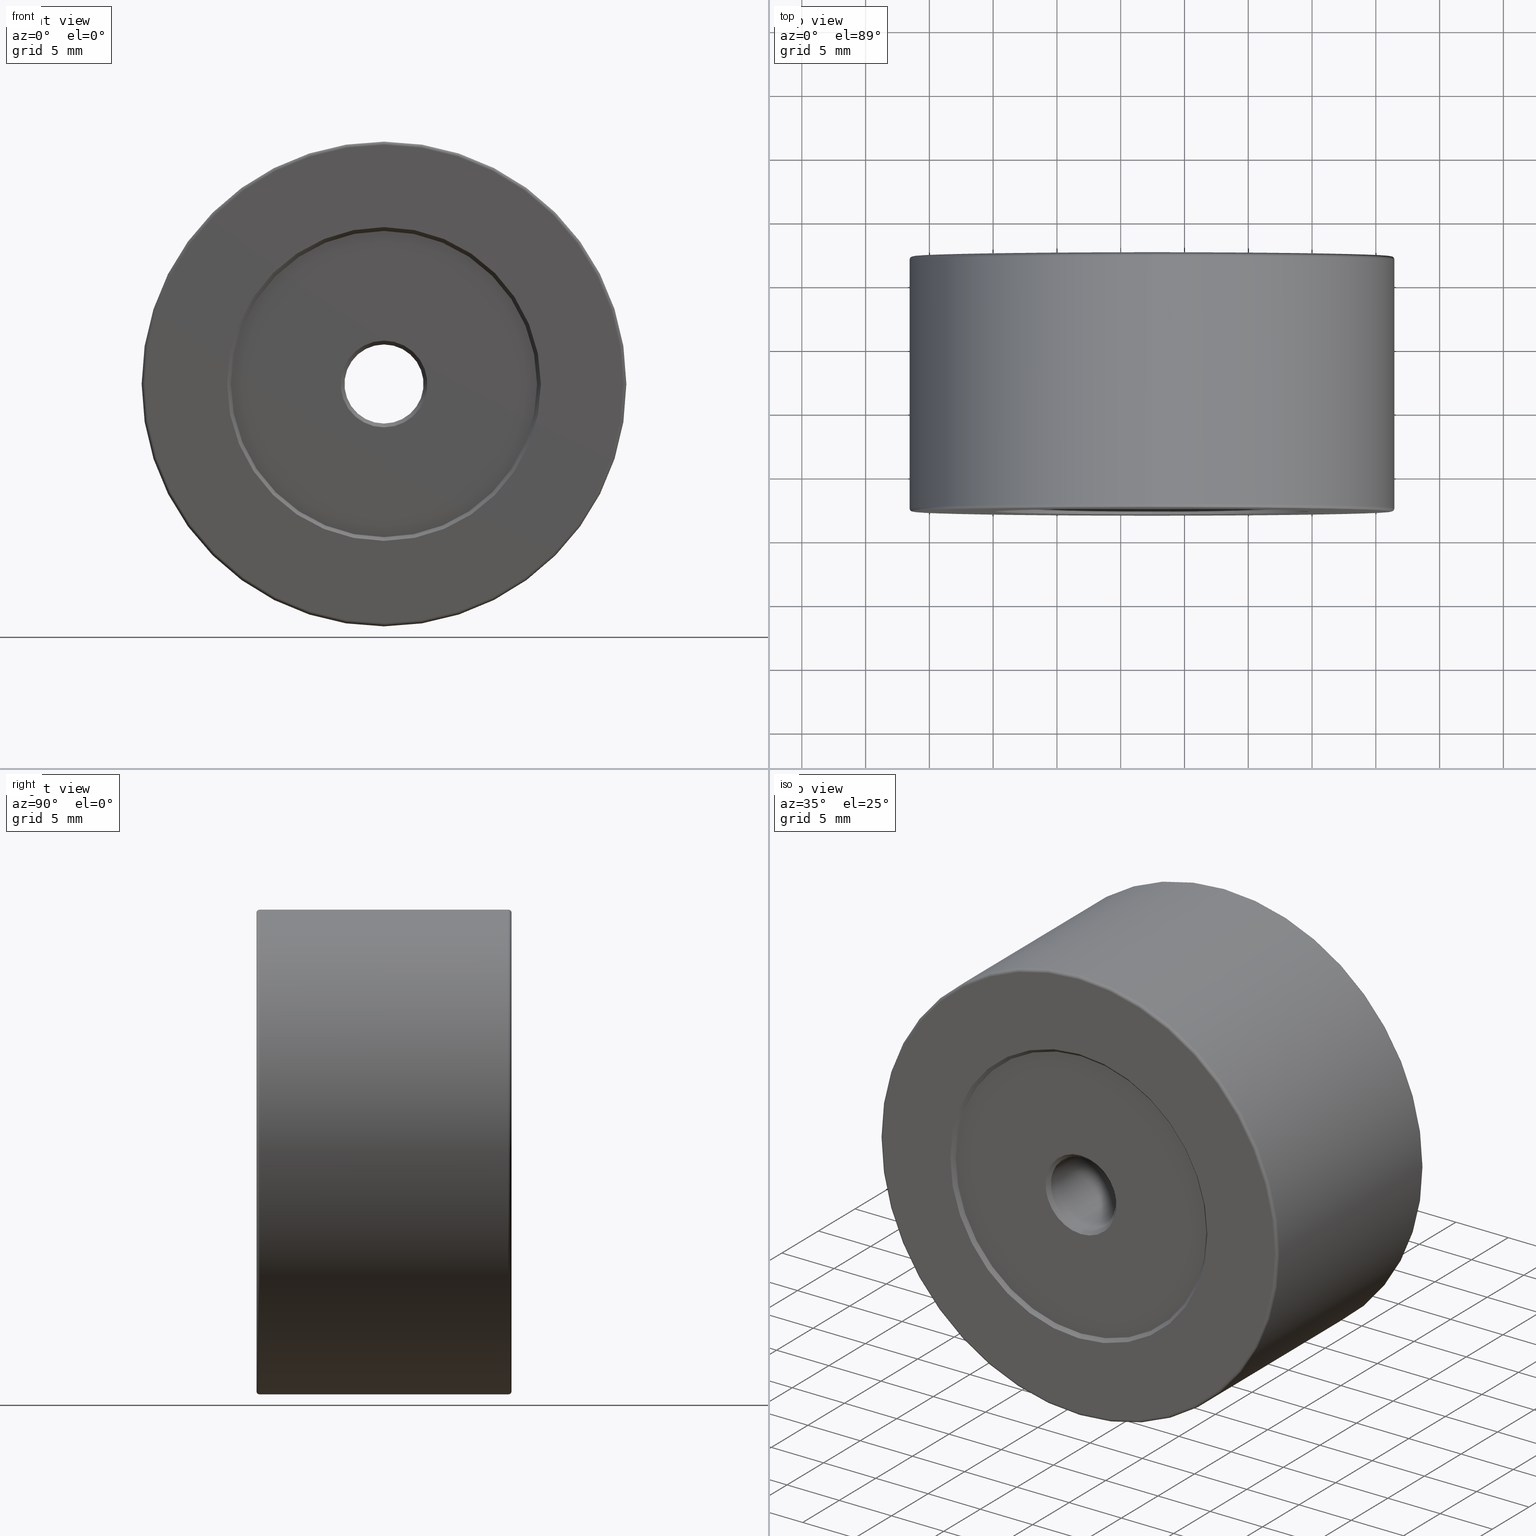
[diagram: canonical four-view strip — front | top / right | iso, engineering-drawing reading convention]
A machine part, canonical four-view strip (front | top / right | iso — engineering-drawing reading convention). The complete STEP part file that produces these views, byte-faithful:
ISO-10303-21;
HEADER;
FILE_DESCRIPTION (( 'STEP AP203' ),
    '1' );
FILE_NAME ('1.4.2.125_ZGH-38-DK20.STEP',
    '2024-04-06T05:22:33',
    ( '' ),
    ( '' ),
    'SwSTEP 2.0',
    'SolidWorks 2021',
    '' );
FILE_SCHEMA (( 'CONFIG_CONTROL_DESIGN' ));
ENDSEC;

DATA;
#1 = EDGE_CURVE ( 'NONE', #419, #423, #435, .T. ) ;
#2 = ORIENTED_EDGE ( 'NONE', *, *, #323, .T. ) ;
#3 = ADVANCED_FACE ( 'NONE', ( #58 ), #562, .T. ) ;
#4 = EDGE_CURVE ( 'NONE', #277, #581, #45, .T. ) ;
#5 = EDGE_LOOP ( 'NONE', ( #458, #461 ) ) ;
#6 = CONICAL_SURFACE ( 'NONE', #609, 12.30000000000001315, 0.7853981633974396193 ) ;
#7 = FACE_OUTER_BOUND ( 'NONE', #402, .T. ) ;
#8 = AXIS2_PLACEMENT_3D ( 'NONE', #103, #561, #430 ) ;
#9 = EDGE_LOOP ( 'NONE', ( #390, #510 ) ) ;
#10 = FACE_BOUND ( 'NONE', #5, .T. ) ;
#11 = PLANE ( 'NONE',  #472 ) ;
#12 = ADVANCED_FACE ( 'NONE', ( #376 ), #329, .T. ) ;
#13 = CARTESIAN_POINT ( 'NONE',  ( -7.546808913101048510, -12.29359512730272819, 41.09999999999999432 ) ) ;
#14 = DATE_AND_TIME ( #217, #464 ) ;
#15 = ORIENTED_EDGE ( 'NONE', *, *, #442, .T. ) ;
#16 = EDGE_CURVE ( 'NONE', #221, #38, #50, .T. ) ;
#17 = DIRECTION ( 'NONE',  ( 0.000000000000000000, 0.000000000000000000, 1.000000000000000000 ) ) ;
#18 = LOCAL_TIME ( 13, 22, 33.00000000000000000, #406 ) ;
#19 = CALENDAR_DATE ( 2024, 6, 4 ) ;
#20 = DIRECTION ( 'NONE',  ( 0.000000000000000000, 0.000000000000000000, 1.000000000000000000 ) ) ;
#21 = VECTOR ( 'NONE', #254, 1000.000000000000114 ) ;
#22 = CARTESIAN_POINT ( 'NONE',  ( -7.546808913101048510, 6.856404872697272168, 38.00000000000000000 ) ) ;
#23 = ADVANCED_FACE ( 'NONE', ( #533 ), #292, .F. ) ;
#24 = DIRECTION ( 'NONE',  ( 0.000000000000000000, 0.000000000000000000, 1.000000000000000000 ) ) ;
#25 = PRODUCT_DEFINITION ( 'δ֪', '', #384, #269 ) ;
#26 = ORIENTED_EDGE ( 'NONE', *, *, #403, .T. ) ;
#27 = CARTESIAN_POINT ( 'NONE',  ( -7.546808913101048510, -12.89359512730272783, 25.69999999999998508 ) ) ;
#28 = CIRCLE ( 'NONE', #237, 12.30000000000001315 ) ;
#29 = AXIS2_PLACEMENT_3D ( 'NONE', #425, #110, #567 ) ;
#30 = EDGE_LOOP ( 'NONE', ( #81, #2, #598, #518 ) ) ;
#31 = CC_DESIGN_APPROVAL ( #509, ( #384 ) ) ;
#32 = CARTESIAN_POINT ( 'NONE',  ( -7.546808913101048510, -12.64359512730272783, 38.00000000000000000 ) ) ;
#33 = AXIS2_PLACEMENT_3D ( 'NONE', #65, #586, #542 ) ;
#34 = ADVANCED_FACE ( 'NONE', ( #307 ), #282, .T. ) ;
#35 = EDGE_LOOP ( 'NONE', ( #556, #131, #15, #324 ) ) ;
#36 = ORIENTED_EDGE ( 'NONE', *, *, #380, .F. ) ;
#37 = SHELL_BASED_SURFACE_MODEL ( 'NONE', ( #229 ) );
#38 = VERTEX_POINT ( 'NONE', #213 ) ;
#39 =( GEOMETRIC_REPRESENTATION_CONTEXT ( 3 ) GLOBAL_UNCERTAINTY_ASSIGNED_CONTEXT ( ( #599 ) ) GLOBAL_UNIT_ASSIGNED_CONTEXT ( ( #477, #297, #150 ) ) REPRESENTATION_CONTEXT ( 'NONE', 'WORKASPACE' ) );
#40 = AXIS2_PLACEMENT_3D ( 'NONE', #521, #467, #381 ) ;
#41 = DIRECTION ( 'NONE',  ( 0.000000000000000000, 1.000000000000000000, 0.000000000000000000 ) ) ;
#42 = EDGE_LOOP ( 'NONE', ( #485, #244, #26, #206 ) ) ;
#43 = CARTESIAN_POINT ( 'NONE',  ( -7.546808913101048510, 6.806404872697267017, 38.00000000000000000 ) ) ;
#44 = CARTESIAN_POINT ( 'NONE',  ( -7.546808913101048510, -12.59359512730272890, 25.99999999999999645 ) ) ;
#45 = LINE ( 'NONE', #193, #492 ) ;
#46 = CARTESIAN_POINT ( 'NONE',  ( -7.546808913101048510, -12.89359512730272783, 38.00000000000000000 ) ) ;
#47 = VERTEX_POINT ( 'NONE', #591 ) ;
#48 = AXIS2_PLACEMENT_3D ( 'NONE', #105, #108, #56 ) ;
#49 = LINE ( 'NONE', #242, #115 ) ;
#50 = CIRCLE ( 'NONE', #154, 0.2500000000000002220 ) ;
#51 = AXIS2_PLACEMENT_3D ( 'NONE', #364, #41, #24 ) ;
#52 = EDGE_CURVE ( 'NONE', #593, #508, #111, .T. ) ;
#53 = FACE_OUTER_BOUND ( 'NONE', #246, .T. ) ;
#54 = ORIENTED_EDGE ( 'NONE', *, *, #342, .F. ) ;
#55 = CARTESIAN_POINT ( 'NONE',  ( -7.546808913101048510, -12.29359512730272819, 38.00000000000000000 ) ) ;
#56 = DIRECTION ( 'NONE',  ( 0.000000000000000000, 0.000000000000000000, 1.000000000000000000 ) ) ;
#57 = EDGE_CURVE ( 'NONE', #226, #277, #184, .T. ) ;
#58 = FACE_OUTER_BOUND ( 'NONE', #35, .T. ) ;
#59 = DIRECTION ( 'NONE',  ( 0.000000000000000000, 0.000000000000000000, 1.000000000000000000 ) ) ;
#60 = DIRECTION ( 'NONE',  ( 0.000000000000000000, 0.000000000000000000, 1.000000000000000000 ) ) ;
#61 = DIRECTION ( 'NONE',  ( -1.000000000000000000, 0.000000000000000000, 0.000000000000000000 ) ) ;
#62 = AXIS2_PLACEMENT_3D ( 'NONE', #466, #515, #94 ) ;
#63 = CARTESIAN_POINT ( 'NONE',  ( -7.546808913101048510, 6.506404872697258313, 34.89999999999999858 ) ) ;
#64 = AXIS2_PLACEMENT_3D ( 'NONE', #232, #248, #293 ) ;
#65 = CARTESIAN_POINT ( 'NONE',  ( -7.546808913101048510, -12.89359512730272783, 38.00000000000000000 ) ) ;
#66 = PLANE ( 'NONE',  #164 ) ;
#67 = PERSON_AND_ORGANIZATION ( #303, #134 ) ;
#68 = CC_DESIGN_PERSON_AND_ORGANIZATION_ASSIGNMENT ( #259, #208, ( #384 ) ) ;
#69 = DIRECTION ( 'NONE',  ( 1.000000000000000000, -0.000000000000000000, 1.224646799147353207E-16 ) ) ;
#70 = VERTEX_POINT ( 'NONE', #330 ) ;
#71 = DIRECTION ( 'NONE',  ( -0.000000000000000000, -1.000000000000000000, -0.000000000000000000 ) ) ;
#72 = EDGE_CURVE ( 'NONE', #221, #70, #240, .T. ) ;
#73 = AXIS2_PLACEMENT_3D ( 'NONE', #603, #187, #422 ) ;
#74 = PERSON_AND_ORGANIZATION ( #303, #134 ) ;
#75 = ADVANCED_FACE ( 'NONE', ( #98 ), #104, .F. ) ;
#76 = DIRECTION ( 'NONE',  ( 0.000000000000000000, 0.000000000000000000, 1.000000000000000000 ) ) ;
#77 = COORDINATED_UNIVERSAL_TIME_OFFSET ( 8, 0, .AHEAD. ) ;
#78 = VERTEX_POINT ( 'NONE', #571 ) ;
#79 = CARTESIAN_POINT ( 'NONE',  ( -7.546808913101048510, 6.806404872697272346, 38.00000000000000000 ) ) ;
#80 = DATE_AND_TIME ( #352, #272 ) ;
#81 = ORIENTED_EDGE ( 'NONE', *, *, #189, .T. ) ;
#82 = MANIFOLD_SURFACE_SHAPE_REPRESENTATION ( '1.4.2.125_ZGH-38-DK20', ( #37, #251 ), #39 ) ;
#83 = CARTESIAN_POINT ( 'NONE',  ( -7.546808913101048510, -12.89359512730272783, 38.00000000000000000 ) ) ;
#84 = EDGE_CURVE ( 'NONE', #226, #369, #49, .T. ) ;
#85 = AXIS2_PLACEMENT_3D ( 'NONE', #592, #371, #132 ) ;
#86 = EDGE_LOOP ( 'NONE', ( #106, #478 ) ) ;
#87 = DIRECTION ( 'NONE',  ( 0.000000000000000000, 1.000000000000000000, 0.000000000000000000 ) ) ;
#88 = CIRCLE ( 'NONE', #428, 18.99999999999999645 ) ;
#89 = ORIENTED_EDGE ( 'NONE', *, *, #331, .T. ) ;
#90 = ORIENTED_EDGE ( 'NONE', *, *, #209, .F. ) ;
#91 = ORIENTED_EDGE ( 'NONE', *, *, #99, .F. ) ;
#92 = CONICAL_SURFACE ( 'NONE', #564, 3.099999999999998757, 0.7853981633974460586 ) ;
#93 = EDGE_CURVE ( 'NONE', #305, #593, #260, .T. ) ;
#94 = DIRECTION ( 'NONE',  ( 0.000000000000000000, 0.000000000000000000, 1.000000000000000000 ) ) ;
#95 = ORIENTED_EDGE ( 'NONE', *, *, #582, .T. ) ;
#96 = CARTESIAN_POINT ( 'NONE',  ( -7.546808913101044958, 6.856404872697272168, 19.00000000000000000 ) ) ;
#97 = DIRECTION ( 'NONE',  ( -0.000000000000000000, -1.000000000000000000, -0.000000000000000000 ) ) ;
#98 = FACE_OUTER_BOUND ( 'NONE', #498, .T. ) ;
#99 = EDGE_CURVE ( 'NONE', #174, #47, #173, .T. ) ;
#100 = DIRECTION ( 'NONE',  ( -0.000000000000000000, -1.000000000000000000, -0.000000000000000000 ) ) ;
#101 = ORIENTED_EDGE ( 'NONE', *, *, #179, .F. ) ;
#102 = CC_DESIGN_APPROVAL ( #394, ( #25 ) ) ;
#103 = CARTESIAN_POINT ( 'NONE',  ( -7.546808913101048510, 6.806404872697272346, 38.00000000000000000 ) ) ;
#104 = CONICAL_SURFACE ( 'NONE', #162, 12.00000000000000355, 0.7853981633974570498 ) ;
#105 = CARTESIAN_POINT ( 'NONE',  ( -7.546808913101048510, -12.59359512730272890, 38.00000000000000000 ) ) ;
#106 = ORIENTED_EDGE ( 'NONE', *, *, #582, .F. ) ;
#107 = DIRECTION ( 'NONE',  ( 0.000000000000000000, 0.000000000000000000, -1.000000000000000000 ) ) ;
#108 = DIRECTION ( 'NONE',  ( -0.000000000000000000, 1.000000000000000000, -0.000000000000000000 ) ) ;
#109 = DIRECTION ( 'NONE',  ( 0.000000000000000000, 0.000000000000000000, 1.000000000000000000 ) ) ;
#110 = DIRECTION ( 'NONE',  ( -0.000000000000000000, 1.000000000000000000, -0.000000000000000000 ) ) ;
#111 = LINE ( 'NONE', #482, #21 ) ;
#112 = DIRECTION ( 'NONE',  ( 0.000000000000000000, 0.000000000000000000, 1.000000000000000000 ) ) ;
#113 = CIRCLE ( 'NONE', #279, 18.74999999999999645 ) ;
#114 = CARTESIAN_POINT ( 'NONE',  ( -7.546808913101046734, -12.59359512730272890, 50.00000000000000000 ) ) ;
#115 = VECTOR ( 'NONE', #325, 1000.000000000000000 ) ;
#116 = ORIENTED_EDGE ( 'NONE', *, *, #608, .F. ) ;
#117 = DIRECTION ( 'NONE',  ( 8.659560562355009279E-17, 0.7071067811865413555, -0.7071067811865536790 ) ) ;
#118 = PERSON_AND_ORGANIZATION ( #303, #134 ) ;
#119 = ADVANCED_FACE ( 'NONE', ( #605 ), #525, .T. ) ;
#120 = LINE ( 'NONE', #491, #611 ) ;
#121 = EDGE_CURVE ( 'NONE', #593, #305, #125, .T. ) ;
#122 = APPROVAL_DATE_TIME ( #80, #239 ) ;
#123 = DIRECTION ( 'NONE',  ( 0.000000000000000000, 1.000000000000000000, 0.000000000000000000 ) ) ;
#124 = PERSON_AND_ORGANIZATION ( #303, #134 ) ;
#125 = CIRCLE ( 'NONE', #465, 12.00000000000000355 ) ;
#126 = ORIENTED_EDGE ( 'NONE', *, *, #294, .F. ) ;
#127 = CARTESIAN_POINT ( 'NONE',  ( -7.546808913101045846, 7.106404872697272168, 56.99999999999999289 ) ) ;
#128 = ORIENTED_EDGE ( 'NONE', *, *, #16, .F. ) ;
#129 = FACE_BOUND ( 'NONE', #607, .T. ) ;
#130 = ADVANCED_FACE ( 'NONE', ( #153 ), #483, .F. ) ;
#131 = ORIENTED_EDGE ( 'NONE', *, *, #342, .T. ) ;
#132 = DIRECTION ( 'NONE',  ( 0.000000000000000000, 0.000000000000000000, 1.000000000000000000 ) ) ;
#133 = ADVANCED_FACE ( 'NONE', ( #563, #445 ), #539, .T. ) ;
#134 = ORGANIZATION ( 'δָ��', 'δָ��', '' ) ;
#135 = ORIENTED_EDGE ( 'NONE', *, *, #166, .T. ) ;
#136 = PRODUCT ( '1.4.2.125_ZGH-38-DK20', '1.4.2.125_ZGH-38-DK20', '', ( #544 ) ) ;
#137 = EDGE_LOOP ( 'NONE', ( #449, #579 ) ) ;
#138 = EDGE_CURVE ( 'NONE', #70, #221, #220, .T. ) ;
#139 = ORIENTED_EDGE ( 'NONE', *, *, #233, .F. ) ;
#140 = ADVANCED_FACE ( 'NONE', ( #486 ), #92, .F. ) ;
#141 = CARTESIAN_POINT ( 'NONE',  ( -7.546808913101048510, 6.806404872697272346, 38.00000000000000000 ) ) ;
#142 = CARTESIAN_POINT ( 'NONE',  ( -7.546808913101048510, -12.59359512730272890, 34.60000000000000142 ) ) ;
#143 = ORIENTED_EDGE ( 'NONE', *, *, #513, .T. ) ;
#144 = APPROVAL_PERSON_ORGANIZATION ( #124, #509, #396 ) ;
#145 = CARTESIAN_POINT ( 'NONE',  ( -7.546808913101048510, 6.506404872697258313, 41.09999999999999432 ) ) ;
#146 = DIRECTION ( 'NONE',  ( 0.000000000000000000, 0.000000000000000000, -1.000000000000000000 ) ) ;
#147 = EDGE_CURVE ( 'NONE', #70, #494, #301, .T. ) ;
#148 = DIRECTION ( 'NONE',  ( 0.000000000000000000, 0.000000000000000000, 1.000000000000000000 ) ) ;
#149 = ORIENTED_EDGE ( 'NONE', *, *, #84, .T. ) ;
#150 =( NAMED_UNIT ( * ) SI_UNIT ( $, .STERADIAN. ) SOLID_ANGLE_UNIT ( ) );
#151 = DIRECTION ( 'NONE',  ( 0.000000000000000000, 0.000000000000000000, 1.000000000000000000 ) ) ;
#152 = CIRCLE ( 'NONE', #48, 12.00000000000000355 ) ;
#153 = FACE_OUTER_BOUND ( 'NONE', #520, .T. ) ;
#154 = AXIS2_PLACEMENT_3D ( 'NONE', #489, #69, #397 ) ;
#155 = ORIENTED_EDGE ( 'NONE', *, *, #294, .T. ) ;
#156 = CARTESIAN_POINT ( 'NONE',  ( -7.546808913101048510, -12.64359512730272783, 38.00000000000000000 ) ) ;
#157 = DIRECTION ( 'NONE',  ( 0.000000000000000000, 1.000000000000000000, 0.000000000000000000 ) ) ;
#158 = CARTESIAN_POINT ( 'NONE',  ( -7.546808913101048510, 6.806404872697267017, 38.00000000000000000 ) ) ;
#159 = DIRECTION ( 'NONE',  ( -0.000000000000000000, -1.000000000000000000, -0.000000000000000000 ) ) ;
#160 = FACE_OUTER_BOUND ( 'NONE', #42, .T. ) ;
#161 = AXIS2_PLACEMENT_3D ( 'NONE', #46, #236, #60 ) ;
#162 = AXIS2_PLACEMENT_3D ( 'NONE', #43, #288, #59 ) ;
#163 = DATE_TIME_ROLE ( 'creation_date' ) ;
#164 = AXIS2_PLACEMENT_3D ( 'NONE', #580, #343, #484 ) ;
#165 = CARTESIAN_POINT ( 'NONE',  ( -7.546808913101048510, -12.64359512730272783, 38.00000000000000000 ) ) ;
#166 = EDGE_CURVE ( 'NONE', #305, #198, #353, .T. ) ;
#167 = CARTESIAN_POINT ( 'NONE',  ( -7.546808913101048510, 6.506404872697258313, 38.00000000000000000 ) ) ;
#168 = APPLICATION_CONTEXT ( 'configuration controlled 3d designs of mechanical parts and assemblies' ) ;
#169 = APPROVAL_ROLE ( '' ) ;
#170 = DIRECTION ( 'NONE',  ( 0.000000000000000000, 0.000000000000000000, -1.000000000000000000 ) ) ;
#171 = DIRECTION ( 'NONE',  ( 8.659560562354860135E-17, -0.7071067811865536790, 0.7071067811865414665 ) ) ;
#172 = SECURITY_CLASSIFICATION ( '', '', #551 ) ;
#173 = CIRCLE ( 'NONE', #64, 0.2500000000000002220 ) ;
#174 = VERTEX_POINT ( 'NONE', #298 ) ;
#175 = DIRECTION ( 'NONE',  ( 0.000000000000000000, 0.000000000000000000, 1.000000000000000000 ) ) ;
#176 = COORDINATED_UNIVERSAL_TIME_OFFSET ( 8, 0, .AHEAD. ) ;
#177 = ORIENTED_EDGE ( 'NONE', *, *, #138, .F. ) ;
#178 = DIRECTION ( 'NONE',  ( 0.000000000000000000, 0.000000000000000000, 1.000000000000000000 ) ) ;
#179 = EDGE_CURVE ( 'NONE', #277, #226, #446, .T. ) ;
#180 = ORIENTED_EDGE ( 'NONE', *, *, #189, .F. ) ;
#181 = CIRCLE ( 'NONE', #73, 0.2500000000000002220 ) ;
#182 = APPROVAL_PERSON_ORGANIZATION ( #118, #239, #169 ) ;
#183 = ORIENTED_EDGE ( 'NONE', *, *, #1, .F. ) ;
#184 = CIRCLE ( 'NONE', #575, 3.099999999999998757 ) ;
#185 = ADVANCED_FACE ( 'NONE', ( #263 ), #514, .F. ) ;
#186 = ORIENTED_EDGE ( 'NONE', *, *, #147, .T. ) ;
#187 = DIRECTION ( 'NONE',  ( 1.000000000000000000, -0.000000000000000000, 1.224646799147353207E-16 ) ) ;
#188 = ORIENTED_EDGE ( 'NONE', *, *, #179, .T. ) ;
#189 = EDGE_CURVE ( 'NONE', #416, #174, #610, .T. ) ;
#190 = DIRECTION ( 'NONE',  ( 0.000000000000000000, 0.000000000000000000, 1.000000000000000000 ) ) ;
#191 = CARTESIAN_POINT ( 'NONE',  ( -7.546808913101046734, -12.89359512730272783, 50.30000000000001137 ) ) ;
#192 = AXIS2_PLACEMENT_3D ( 'NONE', #569, #159, #332 ) ;
#193 = CARTESIAN_POINT ( 'NONE',  ( -7.546808913101048510, -12.89359512730272783, 41.09999999999999432 ) ) ;
#194 = AXIS2_PLACEMENT_3D ( 'NONE', #306, #588, #202 ) ;
#195 = LINE ( 'NONE', #63, #512 ) ;
#196 = EDGE_LOOP ( 'NONE', ( #128, #177, #186, #296 ) ) ;
#197 = EDGE_CURVE ( 'NONE', #581, #275, #550, .T. ) ;
#198 = VERTEX_POINT ( 'NONE', #258 ) ;
#199 = DIRECTION ( 'NONE',  ( 0.000000000000000000, 0.000000000000000000, 1.000000000000000000 ) ) ;
#200 = ORIENTED_EDGE ( 'NONE', *, *, #285, .T. ) ;
#201 = AXIS2_PLACEMENT_3D ( 'NONE', #454, #234, #468 ) ;
#202 = DIRECTION ( 'NONE',  ( 0.000000000000000000, 0.000000000000000000, -1.000000000000000000 ) ) ;
#203 = LINE ( 'NONE', #578, #424 ) ;
#204 = CARTESIAN_POINT ( 'NONE',  ( -7.546808913101048510, 6.806404872697272346, 41.40000000000001279 ) ) ;
#205 = DIRECTION ( 'NONE',  ( 0.000000000000000000, 1.000000000000000000, 0.000000000000000000 ) ) ;
#206 = ORIENTED_EDGE ( 'NONE', *, *, #459, .F. ) ;
#207 = DIRECTION ( 'NONE',  ( 0.000000000000000000, 0.000000000000000000, 1.000000000000000000 ) ) ;
#208 = PERSON_AND_ORGANIZATION_ROLE ( 'creator' ) ;
#209 = EDGE_CURVE ( 'NONE', #369, #408, #319, .T. ) ;
#210 = CARTESIAN_POINT ( 'NONE',  ( -7.546808913101048510, 6.506404872697258313, 38.00000000000000000 ) ) ;
#211 = AXIS2_PLACEMENT_3D ( 'NONE', #440, #123, #438 ) ;
#212 = APPROVAL_DATE_TIME ( #412, #394 ) ;
#213 = CARTESIAN_POINT ( 'NONE',  ( -7.546808913101048510, -12.64359512730272783, 19.00000000000000000 ) ) ;
#214 = ORIENTED_EDGE ( 'NONE', *, *, #225, .T. ) ;
#215 = DIRECTION ( 'NONE',  ( 0.000000000000000000, 1.000000000000000000, 0.000000000000000000 ) ) ;
#216 = LINE ( 'NONE', #145, #547 ) ;
#217 = CALENDAR_DATE ( 2024, 6, 4 ) ;
#218 = CARTESIAN_POINT ( 'NONE',  ( -7.546808913101046734, -12.89359512730272783, 50.30000000000001137 ) ) ;
#219 = CARTESIAN_POINT ( 'NONE',  ( 0.000000000000000000, 0.000000000000000000, 0.000000000000000000 ) ) ;
#220 = CIRCLE ( 'NONE', #273, 18.74999999999999645 ) ;
#221 = VERTEX_POINT ( 'NONE', #545 ) ;
#222 = DIRECTION ( 'NONE',  ( -0.000000000000000000, -1.000000000000000000, -0.000000000000000000 ) ) ;
#223 = ORIENTED_EDGE ( 'NONE', *, *, #572, .F. ) ;
#224 = ADVANCED_FACE ( 'NONE', ( #160 ), #474, .F. ) ;
#225 = EDGE_CURVE ( 'NONE', #275, #581, #558, .T. ) ;
#226 = VERTEX_POINT ( 'NONE', #310 ) ;
#227 = CONICAL_SURFACE ( 'NONE', #374, 3.400000000000000355, 0.7853981633974490562 ) ;
#228 = ORIENTED_EDGE ( 'NONE', *, *, #16, .T. ) ;
#229 = OPEN_SHELL ( 'NONE', ( #140, #522, #130, #540, #34, #12, #365, #75, #185, #600, #302, #3, #119, #462, #23, #133, #557, #516, #224, #276 ) ) ;
#230 = CARTESIAN_POINT ( 'NONE',  ( -7.546808913101046734, 6.806404872697272346, 25.99999999999999645 ) ) ;
#231 = DIRECTION ( 'NONE',  ( 0.000000000000000000, 1.000000000000000000, 0.000000000000000000 ) ) ;
#232 = CARTESIAN_POINT ( 'NONE',  ( -7.546808913101048510, 6.856404872697272168, 56.74999999999999289 ) ) ;
#233 = EDGE_CURVE ( 'NONE', #277, #408, #120, .T. ) ;
#234 = DIRECTION ( 'NONE',  ( -0.000000000000000000, 1.000000000000000000, -0.000000000000000000 ) ) ;
#235 = ORIENTED_EDGE ( 'NONE', *, *, #334, .F. ) ;
#236 = DIRECTION ( 'NONE',  ( -0.000000000000000000, 1.000000000000000000, -0.000000000000000000 ) ) ;
#237 = AXIS2_PLACEMENT_3D ( 'NONE', #450, #594, #175 ) ;
#238 = ORIENTED_EDGE ( 'NONE', *, *, #460, .F. ) ;
#239 = APPROVAL ( #487, 'δָ��' ) ;
#240 = CIRCLE ( 'NONE', #40, 18.74999999999999645 ) ;
#241 = VECTOR ( 'NONE', #375, 1000.000000000000000 ) ;
#242 = CARTESIAN_POINT ( 'NONE',  ( -7.546808913101048510, -12.59359512730272890, 34.60000000000000142 ) ) ;
#243 = FACE_BOUND ( 'NONE', #322, .T. ) ;
#244 = ORIENTED_EDGE ( 'NONE', *, *, #197, .F. ) ;
#245 = DIRECTION ( 'NONE',  ( -0.000000000000000000, -1.000000000000000000, -0.000000000000000000 ) ) ;
#246 = EDGE_LOOP ( 'NONE', ( #559, #372 ) ) ;
#247 = EDGE_CURVE ( 'NONE', #38, #494, #88, .T. ) ;
#248 = DIRECTION ( 'NONE',  ( -1.000000000000000000, 0.000000000000000000, 0.000000000000000000 ) ) ;
#249 = FACE_OUTER_BOUND ( 'NONE', #360, .T. ) ;
#250 = ORIENTED_EDGE ( 'NONE', *, *, #197, .T. ) ;
#251 = AXIS2_PLACEMENT_3D ( 'NONE', #219, #546, #304 ) ;
#252 = DIRECTION ( 'NONE',  ( 0.000000000000000000, 0.000000000000000000, 1.000000000000000000 ) ) ;
#253 = FACE_OUTER_BOUND ( 'NONE', #284, .T. ) ;
#254 = DIRECTION ( 'NONE',  ( 0.000000000000000000, 0.7071067811865413555, 0.7071067811865536790 ) ) ;
#255 = CARTESIAN_POINT ( 'NONE',  ( -7.546808913101048510, -12.89359512730272783, 38.00000000000000000 ) ) ;
#256 = PERSON_AND_ORGANIZATION_ROLE ( 'creator' ) ;
#257 = ORIENTED_EDGE ( 'NONE', *, *, #99, .T. ) ;
#258 = CARTESIAN_POINT ( 'NONE',  ( -7.546808913101046734, 7.106404872697272168, 25.69999999999998508 ) ) ;
#259 = PERSON_AND_ORGANIZATION ( #303, #134 ) ;
#260 = CIRCLE ( 'NONE', #8, 12.00000000000000355 ) ;
#261 = APPROVAL_DATE_TIME ( #14, #509 ) ;
#262 = DIRECTION ( 'NONE',  ( 0.000000000000000000, 1.000000000000000000, 0.000000000000000000 ) ) ;
#263 = FACE_OUTER_BOUND ( 'NONE', #602, .T. ) ;
#264 = VERTEX_POINT ( 'NONE', #204 ) ;
#265 = DIRECTION ( 'NONE',  ( -0.000000000000000000, -1.000000000000000000, -0.000000000000000000 ) ) ;
#266 = CC_DESIGN_PERSON_AND_ORGANIZATION_ASSIGNMENT ( #313, #441, ( #172 ) ) ;
#267 = PERSON_AND_ORGANIZATION ( #303, #134 ) ;
#268 = ORIENTED_EDGE ( 'NONE', *, *, #209, .T. ) ;
#269 = DESIGN_CONTEXT ( 'detailed design', #168, 'design' ) ;
#270 = DIRECTION ( 'NONE',  ( 0.000000000000000000, 0.7071067811865490160, 0.7071067811865460184 ) ) ;
#271 = CIRCLE ( 'NONE', #481, 18.74999999999999645 ) ;
#272 = LOCAL_TIME ( 13, 22, 33.00000000000000000, #77 ) ;
#273 = AXIS2_PLACEMENT_3D ( 'NONE', #255, #71, #76 ) ;
#274 = VECTOR ( 'NONE', #171, 1000.000000000000000 ) ;
#275 = VERTEX_POINT ( 'NONE', #300 ) ;
#276 = ADVANCED_FACE ( 'NONE', ( #10, #391 ), #66, .T. ) ;
#277 = VERTEX_POINT ( 'NONE', #13 ) ;
#278 = ORIENTED_EDGE ( 'NONE', *, *, #429, .F. ) ;
#279 = AXIS2_PLACEMENT_3D ( 'NONE', #414, #87, #606 ) ;
#280 = CARTESIAN_POINT ( 'NONE',  ( -7.546808913101048510, -12.89359512730272783, 34.89999999999999858 ) ) ;
#281 = EDGE_LOOP ( 'NONE', ( #287, #363, #366, #250 ) ) ;
#282 = TOROIDAL_SURFACE ( 'NONE', #312, 18.75000000000000000, 0.2500000000000000000 ) ;
#283 = DIRECTION ( 'NONE',  ( -0.000000000000000000, -1.000000000000000000, -0.000000000000000000 ) ) ;
#284 = EDGE_LOOP ( 'NONE', ( #139, #471, #149, #235 ) ) ;
#285 = EDGE_CURVE ( 'NONE', #226, #275, #555, .T. ) ;
#286 = FACE_OUTER_BOUND ( 'NONE', #315, .T. ) ;
#287 = ORIENTED_EDGE ( 'NONE', *, *, #285, .F. ) ;
#288 = DIRECTION ( 'NONE',  ( 0.000000000000000000, 1.000000000000000000, 0.000000000000000000 ) ) ;
#289 = CARTESIAN_POINT ( 'NONE',  ( -7.546808913101048510, 6.506404872697258313, 41.09999999999999432 ) ) ;
#290 = APPROVAL_PERSON_ORGANIZATION ( #585, #394, #497 ) ;
#291 = ORIENTED_EDGE ( 'NONE', *, *, #1, .T. ) ;
#292 = CONICAL_SURFACE ( 'NONE', #33, 12.30000000000001315, 0.7853981633974396193 ) ;
#293 = DIRECTION ( 'NONE',  ( 0.000000000000000000, 0.000000000000000000, 1.000000000000000000 ) ) ;
#294 = EDGE_CURVE ( 'NONE', #423, #419, #505, .T. ) ;
#295 = DIRECTION ( 'NONE',  ( 0.000000000000000000, -0.000000000000000000, 1.000000000000000000 ) ) ;
#296 = ORIENTED_EDGE ( 'NONE', *, *, #247, .F. ) ;
#297 =( NAMED_UNIT ( * ) PLANE_ANGLE_UNIT ( ) SI_UNIT ( $, .RADIAN. ) );
#298 = CARTESIAN_POINT ( 'NONE',  ( -7.546808913101048510, 6.856404872697272168, 56.99999999999999289 ) ) ;
#299 = DIRECTION ( 'NONE',  ( 0.000000000000000000, -0.7071067811865536790, -0.7071067811865414665 ) ) ;
#300 = CARTESIAN_POINT ( 'NONE',  ( -7.546808913101048510, 6.506404872697258313, 34.89999999999999858 ) ) ;
#301 = CIRCLE ( 'NONE', #455, 0.2500000000000002220 ) ;
#302 = ADVANCED_FACE ( 'NONE', ( #328 ), #320, .T. ) ;
#303 = PERSON ( 'δָ��', 'δָ��', 'δָ��', ('δָ��'), ('δָ��'), ('δָ��') ) ;
#304 = DIRECTION ( 'NONE',  ( 1.000000000000000000, 0.000000000000000000, 0.000000000000000000 ) ) ;
#305 = VERTEX_POINT ( 'NONE', #230 ) ;
#306 = CARTESIAN_POINT ( 'NONE',  ( -7.546808913101048510, -12.29359512730272819, 38.00000000000000000 ) ) ;
#307 = FACE_OUTER_BOUND ( 'NONE', #548, .T. ) ;
#308 = DIRECTION ( 'NONE',  ( -0.000000000000000000, -1.000000000000000000, -0.000000000000000000 ) ) ;
#309 = SHAPE_DEFINITION_REPRESENTATION ( #506, #82 ) ;
#310 = CARTESIAN_POINT ( 'NONE',  ( -7.546808913101048510, -12.29359512730272819, 34.89999999999999858 ) ) ;
#311 = CIRCLE ( 'NONE', #502, 3.400000000000014122 ) ;
#312 = AXIS2_PLACEMENT_3D ( 'NONE', #165, #262, #20 ) ;
#313 = PERSON_AND_ORGANIZATION ( #303, #134 ) ;
#314 = CARTESIAN_POINT ( 'NONE',  ( -7.546808913101048510, 7.106404872697272168, 19.00000000000000000 ) ) ;
#315 = EDGE_LOOP ( 'NONE', ( #180, #596, #36, #91 ) ) ;
#316 = PLANE ( 'NONE',  #410 ) ;
#317 = ORIENTED_EDGE ( 'NONE', *, *, #413, .T. ) ;
#318 = LINE ( 'NONE', #314, #490 ) ;
#319 = CIRCLE ( 'NONE', #399, 3.400000000000000355 ) ;
#320 = TOROIDAL_SURFACE ( 'NONE', #587, 18.75000000000000000, 0.2500000000000000000 ) ;
#321 = VERTEX_POINT ( 'NONE', #44 ) ;
#322 = EDGE_LOOP ( 'NONE', ( #589, #613 ) ) ;
#323 = EDGE_CURVE ( 'NONE', #174, #494, #499, .T. ) ;
#324 = ORIENTED_EDGE ( 'NONE', *, *, #247, .T. ) ;
#325 = DIRECTION ( 'NONE',  ( 0.000000000000000000, -0.7071067811865470176, -0.7071067811865480168 ) ) ;
#326 = LINE ( 'NONE', #218, #274 ) ;
#327 = DIRECTION ( 'NONE',  ( -0.000000000000000000, -1.000000000000000000, -0.000000000000000000 ) ) ;
#328 = FACE_OUTER_BOUND ( 'NONE', #601, .T. ) ;
#329 = CYLINDRICAL_SURFACE ( 'NONE', #426, 19.00000000000000000 ) ;
#330 = CARTESIAN_POINT ( 'NONE',  ( -7.546808913101048510, -12.89359512730272783, 56.74999999999999289 ) ) ;
#331 = EDGE_CURVE ( 'NONE', #568, #419, #326, .T. ) ;
#332 = DIRECTION ( 'NONE',  ( 0.000000000000000000, 0.000000000000000000, 1.000000000000000000 ) ) ;
#333 = ORIENTED_EDGE ( 'NONE', *, *, #403, .F. ) ;
#334 = EDGE_CURVE ( 'NONE', #408, #369, #348, .T. ) ;
#335 = CARTESIAN_POINT ( 'NONE',  ( -7.546808913101045846, -12.64359512730272783, 56.99999999999999289 ) ) ;
#336 = DIRECTION ( 'NONE',  ( 0.000000000000000000, 0.000000000000000000, -1.000000000000000000 ) ) ;
#337 = AXIS2_PLACEMENT_3D ( 'NONE', #158, #351, #112 ) ;
#338 = CARTESIAN_POINT ( 'NONE',  ( -7.546808913101048510, -12.59359512730272890, 38.00000000000000000 ) ) ;
#339 = CARTESIAN_POINT ( 'NONE',  ( -7.546808913101048510, 7.106404872697272168, 50.30000000000001137 ) ) ;
#340 = DIRECTION ( 'NONE',  ( -0.000000000000000000, 1.000000000000000000, -0.000000000000000000 ) ) ;
#341 = DIRECTION ( 'NONE',  ( 0.000000000000000000, -0.000000000000000000, 1.000000000000000000 ) ) ;
#342 = EDGE_CURVE ( 'NONE', #174, #416, #535, .T. ) ;
#343 = DIRECTION ( 'NONE',  ( 0.000000000000000000, 1.000000000000000000, 0.000000000000000000 ) ) ;
#344 = CARTESIAN_POINT ( 'NONE',  ( -7.546808913101048510, -12.59359512730272890, 38.00000000000000000 ) ) ;
#345 = ORIENTED_EDGE ( 'NONE', *, *, #84, .F. ) ;
#346 = DIRECTION ( 'NONE',  ( 0.000000000000000000, -1.000000000000000000, 0.000000000000000000 ) ) ;
#347 = AXIS2_PLACEMENT_3D ( 'NONE', #22, #308, #109 ) ;
#348 = CIRCLE ( 'NONE', #201, 3.400000000000000355 ) ;
#349 = PRODUCT_RELATED_PRODUCT_CATEGORY ( 'detail', '', ( #136 ) ) ;
#350 = COORDINATED_UNIVERSAL_TIME_OFFSET ( 8, 0, .AHEAD. ) ;
#351 = DIRECTION ( 'NONE',  ( 0.000000000000000000, 1.000000000000000000, 0.000000000000000000 ) ) ;
#352 = CALENDAR_DATE ( 2024, 6, 4 ) ;
#353 = LINE ( 'NONE', #398, #377 ) ;
#354 = EDGE_CURVE ( 'NONE', #416, #452, #181, .T. ) ;
#355 = APPROVAL_STATUS ( 'not_yet_approved' ) ;
#356 = ORIENTED_EDGE ( 'NONE', *, *, #93, .F. ) ;
#357 = DIRECTION ( 'NONE',  ( 0.000000000000000000, 1.000000000000000000, 0.000000000000000000 ) ) ;
#358 = CIRCLE ( 'NONE', #584, 18.99999999999999645 ) ;
#359 = LOCAL_TIME ( 13, 22, 33.00000000000000000, #350 ) ;
#360 = EDGE_LOOP ( 'NONE', ( #95, #89, #126, #223 ) ) ;
#361 = FACE_OUTER_BOUND ( 'NONE', #9, .T. ) ;
#362 = COORDINATED_UNIVERSAL_TIME_OFFSET ( 8, 0, .AHEAD. ) ;
#363 = ORIENTED_EDGE ( 'NONE', *, *, #57, .T. ) ;
#364 = CARTESIAN_POINT ( 'NONE',  ( -7.546808913101048510, -12.89359512730272783, 38.00000000000000000 ) ) ;
#365 = ADVANCED_FACE ( 'NONE', ( #286 ), #373, .T. ) ;
#366 = ORIENTED_EDGE ( 'NONE', *, *, #4, .T. ) ;
#367 = AXIS2_PLACEMENT_3D ( 'NONE', #597, #553, #178 ) ;
#368 = AXIS2_PLACEMENT_3D ( 'NONE', #338, #527, #107 ) ;
#369 = VERTEX_POINT ( 'NONE', #142 ) ;
#370 = ORIENTED_EDGE ( 'NONE', *, *, #331, .F. ) ;
#371 = DIRECTION ( 'NONE',  ( 0.000000000000000000, 1.000000000000000000, 0.000000000000000000 ) ) ;
#372 = ORIENTED_EDGE ( 'NONE', *, *, #528, .T. ) ;
#373 = TOROIDAL_SURFACE ( 'NONE', #85, 18.75000000000000000, 0.2500000000000000000 ) ;
#374 = AXIS2_PLACEMENT_3D ( 'NONE', #344, #100, #519 ) ;
#375 = DIRECTION ( 'NONE',  ( -0.000000000000000000, 1.000000000000000000, -0.000000000000000000 ) ) ;
#376 = FACE_OUTER_BOUND ( 'NONE', #30, .T. ) ;
#377 = VECTOR ( 'NONE', #117, 1000.000000000000114 ) ;
#378 = CYLINDRICAL_SURFACE ( 'NONE', #29, 3.099999999999998757 ) ;
#379 = ORIENTED_EDGE ( 'NONE', *, *, #4, .F. ) ;
#380 = EDGE_CURVE ( 'NONE', #47, #452, #113, .T. ) ;
#381 = DIRECTION ( 'NONE',  ( 0.000000000000000000, 0.000000000000000000, 1.000000000000000000 ) ) ;
#382 = EDGE_LOOP ( 'NONE', ( #370, #317, #415, #183 ) ) ;
#383 = DIRECTION ( 'NONE',  ( 0.000000000000000000, 1.000000000000000000, 0.000000000000000000 ) ) ;
#384 = PRODUCT_DEFINITION_FORMATION_WITH_SPECIFIED_SOURCE ( '�κ�', '', #136, .NOT_KNOWN. ) ;
#385 = ORIENTED_EDGE ( 'NONE', *, *, #233, .T. ) ;
#386 = AXIS2_PLACEMENT_3D ( 'NONE', #476, #511, #199 ) ;
#387 = DIRECTION ( 'NONE',  ( 0.000000000000000000, 0.000000000000000000, 1.000000000000000000 ) ) ;
#388 = DIRECTION ( 'NONE',  ( 0.000000000000000000, 1.000000000000000000, 0.000000000000000000 ) ) ;
#389 = DIRECTION ( 'NONE',  ( 0.000000000000000000, 0.000000000000000000, -1.000000000000000000 ) ) ;
#390 = ORIENTED_EDGE ( 'NONE', *, *, #138, .T. ) ;
#391 = FACE_OUTER_BOUND ( 'NONE', #137, .T. ) ;
#392 = CARTESIAN_POINT ( 'NONE',  ( -7.546808913101048510, 7.106404872697272168, 38.00000000000000000 ) ) ;
#393 = EDGE_LOOP ( 'NONE', ( #268, #475 ) ) ;
#394 = APPROVAL ( #554, 'δָ��' ) ;
#395 = CARTESIAN_POINT ( 'NONE',  ( -7.546808913101048510, -12.64359512730272783, 56.74999999999999289 ) ) ;
#396 = APPROVAL_ROLE ( '' ) ;
#397 = DIRECTION ( 'NONE',  ( 0.000000000000000000, 0.000000000000000000, -1.000000000000000000 ) ) ;
#398 = CARTESIAN_POINT ( 'NONE',  ( -7.546808913101046734, 6.806404872697267017, 25.99999999999999645 ) ) ;
#399 = AXIS2_PLACEMENT_3D ( 'NONE', #590, #340, #170 ) ;
#400 = VECTOR ( 'NONE', #222, 1000.000000000000000 ) ;
#401 = DATE_AND_TIME ( #447, #359 ) ;
#402 = EDGE_LOOP ( 'NONE', ( #188, #200, #214, #379 ) ) ;
#403 = EDGE_CURVE ( 'NONE', #581, #264, #216, .T. ) ;
#404 = DIRECTION ( 'NONE',  ( 0.000000000000000000, 1.000000000000000000, 0.000000000000000000 ) ) ;
#405 = CC_DESIGN_DATE_AND_TIME_ASSIGNMENT ( #439, #163, ( #25 ) ) ;
#406 = COORDINATED_UNIVERSAL_TIME_OFFSET ( 8, 0, .AHEAD. ) ;
#407 = DIRECTION ( 'NONE',  ( 0.000000000000000000, 0.000000000000000000, 1.000000000000000000 ) ) ;
#408 = VERTEX_POINT ( 'NONE', #517 ) ;
#409 = CARTESIAN_POINT ( 'NONE',  ( -7.546808913101048510, 6.856404872697272168, 38.00000000000000000 ) ) ;
#410 = AXIS2_PLACEMENT_3D ( 'NONE', #83, #157, #341 ) ;
#411 = AXIS2_PLACEMENT_3D ( 'NONE', #531, #346, #207 ) ;
#412 = DATE_AND_TIME ( #19, #18 ) ;
#413 = EDGE_CURVE ( 'NONE', #568, #321, #463, .T. ) ;
#414 = CARTESIAN_POINT ( 'NONE',  ( -7.546808913101048510, 7.106404872697272168, 38.00000000000000000 ) ) ;
#415 = ORIENTED_EDGE ( 'NONE', *, *, #572, .T. ) ;
#416 = VERTEX_POINT ( 'NONE', #96 ) ;
#417 = CIRCLE ( 'NONE', #573, 3.400000000000014122 ) ;
#418 = AXIS2_PLACEMENT_3D ( 'NONE', #469, #327, #336 ) ;
#419 = VERTEX_POINT ( 'NONE', #191 ) ;
#420 = DIRECTION ( 'NONE',  ( 0.000000000000000000, 1.000000000000000000, 0.000000000000000000 ) ) ;
#421 = ORIENTED_EDGE ( 'NONE', *, *, #507, .F. ) ;
#422 = DIRECTION ( 'NONE',  ( 0.000000000000000000, 0.000000000000000000, -1.000000000000000000 ) ) ;
#423 = VERTEX_POINT ( 'NONE', #27 ) ;
#424 = VECTOR ( 'NONE', #299, 1000.000000000000000 ) ;
#425 = CARTESIAN_POINT ( 'NONE',  ( -7.546808913101048510, -12.89359512730272783, 38.00000000000000000 ) ) ;
#426 = AXIS2_PLACEMENT_3D ( 'NONE', #565, #97, #389 ) ;
#427 = ORIENTED_EDGE ( 'NONE', *, *, #52, .T. ) ;
#428 = AXIS2_PLACEMENT_3D ( 'NONE', #156, #436, #534 ) ;
#429 = EDGE_CURVE ( 'NONE', #494, #38, #358, .T. ) ;
#430 = DIRECTION ( 'NONE',  ( 0.000000000000000000, 0.000000000000000000, 1.000000000000000000 ) ) ;
#431 = DIRECTION ( 'NONE',  ( 0.000000000000000000, 0.000000000000000000, 1.000000000000000000 ) ) ;
#432 = ORIENTED_EDGE ( 'NONE', *, *, #166, .F. ) ;
#433 = ORIENTED_EDGE ( 'NONE', *, *, #72, .F. ) ;
#434 = APPLICATION_PROTOCOL_DEFINITION ( 'international standard', 'config_control_design', 1994, #495 ) ;
#435 = CIRCLE ( 'NONE', #538, 12.30000000000001315 ) ;
#436 = DIRECTION ( 'NONE',  ( 0.000000000000000000, 1.000000000000000000, 0.000000000000000000 ) ) ;
#437 = CARTESIAN_POINT ( 'NONE',  ( -7.546808913101048510, 7.106404872697272168, 38.00000000000000000 ) ) ;
#438 = DIRECTION ( 'NONE',  ( 0.000000000000000000, 0.000000000000000000, 1.000000000000000000 ) ) ;
#439 = DATE_AND_TIME ( #541, #443 ) ;
#440 = CARTESIAN_POINT ( 'NONE',  ( -7.546808913101048510, 6.506404872697258313, 38.00000000000000000 ) ) ;
#441 = PERSON_AND_ORGANIZATION_ROLE ( 'classification_officer' ) ;
#442 = EDGE_CURVE ( 'NONE', #416, #38, #318, .T. ) ;
#443 = LOCAL_TIME ( 13, 22, 33.00000000000000000, #176 ) ;
#444 = CC_DESIGN_APPROVAL ( #239, ( #172 ) ) ;
#445 = FACE_OUTER_BOUND ( 'NONE', #86, .T. ) ;
#446 = CIRCLE ( 'NONE', #194, 3.099999999999998757 ) ;
#447 = CALENDAR_DATE ( 2024, 6, 4 ) ;
#448 = APPLICATION_PROTOCOL_DEFINITION ( 'international standard', 'config_control_design', 1994, #168 ) ;
#449 = ORIENTED_EDGE ( 'NONE', *, *, #121, .T. ) ;
#450 = CARTESIAN_POINT ( 'NONE',  ( -7.546808913101048510, 7.106404872697272168, 38.00000000000000000 ) ) ;
#451 = PERSON_AND_ORGANIZATION_ROLE ( 'design_supplier' ) ;
#452 = VERTEX_POINT ( 'NONE', #496 ) ;
#453 = CIRCLE ( 'NONE', #192, 12.30000000000001315 ) ;
#454 = CARTESIAN_POINT ( 'NONE',  ( -7.546808913101048510, -12.59359512730272890, 38.00000000000000000 ) ) ;
#455 = AXIS2_PLACEMENT_3D ( 'NONE', #395, #61, #479 ) ;
#456 = CC_DESIGN_DATE_AND_TIME_ASSIGNMENT ( #401, #493, ( #172 ) ) ;
#457 = ORIENTED_EDGE ( 'NONE', *, *, #147, .F. ) ;
#458 = ORIENTED_EDGE ( 'NONE', *, *, #608, .T. ) ;
#459 = EDGE_CURVE ( 'NONE', #78, #264, #417, .T. ) ;
#460 = EDGE_CURVE ( 'NONE', #198, #508, #28, .T. ) ;
#461 = ORIENTED_EDGE ( 'NONE', *, *, #459, .T. ) ;
#462 = ADVANCED_FACE ( 'NONE', ( #361, #129 ), #316, .F. ) ;
#463 = CIRCLE ( 'NONE', #367, 12.00000000000000355 ) ;
#464 = LOCAL_TIME ( 13, 22, 33.00000000000000000, #362 ) ;
#465 = AXIS2_PLACEMENT_3D ( 'NONE', #141, #383, #190 ) ;
#466 = CARTESIAN_POINT ( 'NONE',  ( -7.546808913101048510, 6.856404872697272168, 38.00000000000000000 ) ) ;
#467 = DIRECTION ( 'NONE',  ( -0.000000000000000000, -1.000000000000000000, -0.000000000000000000 ) ) ;
#468 = DIRECTION ( 'NONE',  ( 0.000000000000000000, 0.000000000000000000, -1.000000000000000000 ) ) ;
#469 = CARTESIAN_POINT ( 'NONE',  ( -7.546808913101048510, 7.106404872697272168, 38.00000000000000000 ) ) ;
#470 = DIRECTION ( 'NONE',  ( -0.000000000000000000, -1.000000000000000000, -0.000000000000000000 ) ) ;
#471 = ORIENTED_EDGE ( 'NONE', *, *, #57, .F. ) ;
#472 = AXIS2_PLACEMENT_3D ( 'NONE', #392, #205, #295 ) ;
#473 = CARTESIAN_POINT ( 'NONE',  ( -7.546808913101048510, 6.806404872697272346, 50.00000000000000000 ) ) ;
#474 = CONICAL_SURFACE ( 'NONE', #211, 3.099999999999998757, 0.7853981633974460586 ) ;
#475 = ORIENTED_EDGE ( 'NONE', *, *, #334, .T. ) ;
#476 = CARTESIAN_POINT ( 'NONE',  ( -7.546808913101048510, -12.64359512730272783, 38.00000000000000000 ) ) ;
#477 =( LENGTH_UNIT ( ) NAMED_UNIT ( * ) SI_UNIT ( .MILLI., .METRE. ) );
#478 = ORIENTED_EDGE ( 'NONE', *, *, #413, .F. ) ;
#479 = DIRECTION ( 'NONE',  ( 0.000000000000000000, 0.000000000000000000, 1.000000000000000000 ) ) ;
#480 = CARTESIAN_POINT ( 'NONE',  ( -7.546808913101048510, -12.89359512730272783, 38.00000000000000000 ) ) ;
#481 = AXIS2_PLACEMENT_3D ( 'NONE', #437, #388, #148 ) ;
#482 = CARTESIAN_POINT ( 'NONE',  ( -7.546808913101048510, 6.806404872697267017, 50.00000000000000000 ) ) ;
#483 = CONICAL_SURFACE ( 'NONE', #368, 3.400000000000000355, 0.7853981633974490562 ) ;
#484 = DIRECTION ( 'NONE',  ( 0.000000000000000000, -0.000000000000000000, 1.000000000000000000 ) ) ;
#485 = ORIENTED_EDGE ( 'NONE', *, *, #513, .F. ) ;
#486 = FACE_OUTER_BOUND ( 'NONE', #576, .T. ) ;
#487 = APPROVAL_STATUS ( 'not_yet_approved' ) ;
#488 = PERSON_AND_ORGANIZATION_ROLE ( 'design_owner' ) ;
#489 = CARTESIAN_POINT ( 'NONE',  ( -7.546808913101045846, -12.64359512730272783, 19.25000000000000000 ) ) ;
#490 = VECTOR ( 'NONE', #283, 1000.000000000000000 ) ;
#491 = CARTESIAN_POINT ( 'NONE',  ( -7.546808913101048510, -12.59359512730272890, 41.39999999999999858 ) ) ;
#492 = VECTOR ( 'NONE', #526, 1000.000000000000000 ) ;
#493 = DATE_TIME_ROLE ( 'classification_date' ) ;
#494 = VERTEX_POINT ( 'NONE', #335 ) ;
#495 = APPLICATION_CONTEXT ( 'configuration controlled 3d designs of mechanical parts and assemblies' ) ;
#496 = CARTESIAN_POINT ( 'NONE',  ( -7.546808913101045846, 7.106404872697272168, 19.25000000000000000 ) ) ;
#497 = APPROVAL_ROLE ( '' ) ;
#498 = EDGE_LOOP ( 'NONE', ( #356, #135, #421, #501 ) ) ;
#499 = LINE ( 'NONE', #127, #400 ) ;
#500 = CC_DESIGN_PERSON_AND_ORGANIZATION_ASSIGNMENT ( #67, #488, ( #136 ) ) ;
#501 = ORIENTED_EDGE ( 'NONE', *, *, #52, .F. ) ;
#502 = AXIS2_PLACEMENT_3D ( 'NONE', #574, #470, #431 ) ;
#503 = DIRECTION ( 'NONE',  ( 0.000000000000000000, 0.000000000000000000, 1.000000000000000000 ) ) ;
#504 = AXIS2_PLACEMENT_3D ( 'NONE', #167, #543, #387 ) ;
#505 = CIRCLE ( 'NONE', #51, 12.30000000000001315 ) ;
#506 = PRODUCT_DEFINITION_SHAPE ( 'NONE', 'NONE',  #25 ) ;
#507 = EDGE_CURVE ( 'NONE', #508, #198, #453, .T. ) ;
#508 = VERTEX_POINT ( 'NONE', #339 ) ;
#509 = APPROVAL ( #355, 'δָ��' ) ;
#510 = ORIENTED_EDGE ( 'NONE', *, *, #72, .T. ) ;
#511 = DIRECTION ( 'NONE',  ( 0.000000000000000000, 1.000000000000000000, 0.000000000000000000 ) ) ;
#512 = VECTOR ( 'NONE', #532, 1000.000000000000114 ) ;
#513 = EDGE_CURVE ( 'NONE', #275, #78, #195, .T. ) ;
#514 = CONICAL_SURFACE ( 'NONE', #337, 12.00000000000000355, 0.7853981633974570498 ) ;
#515 = DIRECTION ( 'NONE',  ( -0.000000000000000000, -1.000000000000000000, -0.000000000000000000 ) ) ;
#516 = ADVANCED_FACE ( 'NONE', ( #524 ), #378, .F. ) ;
#517 = CARTESIAN_POINT ( 'NONE',  ( -7.546808913101048510, -12.59359512730272890, 41.39999999999999858 ) ) ;
#518 = ORIENTED_EDGE ( 'NONE', *, *, #442, .F. ) ;
#519 = DIRECTION ( 'NONE',  ( 0.000000000000000000, 0.000000000000000000, -1.000000000000000000 ) ) ;
#520 = EDGE_LOOP ( 'NONE', ( #101, #385, #90, #345 ) ) ;
#521 = CARTESIAN_POINT ( 'NONE',  ( -7.546808913101048510, -12.89359512730272783, 38.00000000000000000 ) ) ;
#522 = ADVANCED_FACE ( 'NONE', ( #7 ), #612, .F. ) ;
#523 = CC_DESIGN_SECURITY_CLASSIFICATION ( #172, ( #384 ) ) ;
#524 = FACE_OUTER_BOUND ( 'NONE', #281, .T. ) ;
#525 = TOROIDAL_SURFACE ( 'NONE', #386, 18.75000000000000000, 0.2500000000000000000 ) ;
#526 = DIRECTION ( 'NONE',  ( -0.000000000000000000, 1.000000000000000000, -0.000000000000000000 ) ) ;
#527 = DIRECTION ( 'NONE',  ( -0.000000000000000000, -1.000000000000000000, -0.000000000000000000 ) ) ;
#528 = EDGE_CURVE ( 'NONE', #452, #47, #271, .T. ) ;
#529 = DIRECTION ( 'NONE',  ( -0.000000000000000000, -1.000000000000000000, -0.000000000000000000 ) ) ;
#530 = CC_DESIGN_PERSON_AND_ORGANIZATION_ASSIGNMENT ( #74, #256, ( #25 ) ) ;
#531 = CARTESIAN_POINT ( 'NONE',  ( -7.546808913101048510, -12.59359512730272890, 38.00000000000000000 ) ) ;
#532 = DIRECTION ( 'NONE',  ( 8.659560562354914369E-17, 0.7071067811865490160, -0.7071067811865460184 ) ) ;
#533 = FACE_OUTER_BOUND ( 'NONE', #382, .T. ) ;
#534 = DIRECTION ( 'NONE',  ( 0.000000000000000000, 0.000000000000000000, 1.000000000000000000 ) ) ;
#535 = CIRCLE ( 'NONE', #62, 18.99999999999999645 ) ;
#536 = DIRECTION ( 'NONE',  ( 0.000000000000000000, 0.000000000000000000, -1.000000000000000000 ) ) ;
#537 = ORIENTED_EDGE ( 'NONE', *, *, #354, .F. ) ;
#538 = AXIS2_PLACEMENT_3D ( 'NONE', #570, #231, #151 ) ;
#539 = PLANE ( 'NONE',  #411 ) ;
#540 = ADVANCED_FACE ( 'NONE', ( #249 ), #6, .F. ) ;
#541 = CALENDAR_DATE ( 2024, 6, 4 ) ;
#542 = DIRECTION ( 'NONE',  ( 0.000000000000000000, 0.000000000000000000, -1.000000000000000000 ) ) ;
#543 = DIRECTION ( 'NONE',  ( 0.000000000000000000, 1.000000000000000000, 0.000000000000000000 ) ) ;
#544 = MECHANICAL_CONTEXT ( 'NONE', #495, 'mechanical' ) ;
#545 = CARTESIAN_POINT ( 'NONE',  ( -7.546808913101045846, -12.89359512730272783, 19.25000000000000000 ) ) ;
#546 = DIRECTION ( 'NONE',  ( 0.000000000000000000, 0.000000000000000000, 1.000000000000000000 ) ) ;
#547 = VECTOR ( 'NONE', #270, 1000.000000000000114 ) ;
#548 = EDGE_LOOP ( 'NONE', ( #433, #228, #278, #457 ) ) ;
#549 = DIRECTION ( 'NONE',  ( 0.000000000000000000, 0.000000000000000000, 1.000000000000000000 ) ) ;
#550 = CIRCLE ( 'NONE', #595, 3.099999999999998757 ) ;
#551 = SECURITY_CLASSIFICATION_LEVEL ( 'unclassified' ) ;
#552 = ORIENTED_EDGE ( 'NONE', *, *, #528, .F. ) ;
#553 = DIRECTION ( 'NONE',  ( -0.000000000000000000, 1.000000000000000000, -0.000000000000000000 ) ) ;
#554 = APPROVAL_STATUS ( 'not_yet_approved' ) ;
#555 = LINE ( 'NONE', #280, #241 ) ;
#556 = ORIENTED_EDGE ( 'NONE', *, *, #323, .F. ) ;
#557 = ADVANCED_FACE ( 'NONE', ( #253 ), #227, .F. ) ;
#558 = CIRCLE ( 'NONE', #504, 3.099999999999998757 ) ;
#559 = ORIENTED_EDGE ( 'NONE', *, *, #380, .T. ) ;
#560 = ORIENTED_EDGE ( 'NONE', *, *, #121, .F. ) ;
#561 = DIRECTION ( 'NONE',  ( 0.000000000000000000, 1.000000000000000000, 0.000000000000000000 ) ) ;
#562 = CYLINDRICAL_SURFACE ( 'NONE', #418, 19.00000000000000000 ) ;
#563 = FACE_BOUND ( 'NONE', #393, .T. ) ;
#564 = AXIS2_PLACEMENT_3D ( 'NONE', #210, #404, #17 ) ;
#565 = CARTESIAN_POINT ( 'NONE',  ( -7.546808913101048510, 7.106404872697272168, 38.00000000000000000 ) ) ;
#566 = CC_DESIGN_PERSON_AND_ORGANIZATION_ASSIGNMENT ( #267, #451, ( #384 ) ) ;
#567 = DIRECTION ( 'NONE',  ( 0.000000000000000000, 0.000000000000000000, 1.000000000000000000 ) ) ;
#568 = VERTEX_POINT ( 'NONE', #114 ) ;
#569 = CARTESIAN_POINT ( 'NONE',  ( -7.546808913101048510, 7.106404872697272168, 38.00000000000000000 ) ) ;
#570 = CARTESIAN_POINT ( 'NONE',  ( -7.546808913101048510, -12.89359512730272783, 38.00000000000000000 ) ) ;
#571 = CARTESIAN_POINT ( 'NONE',  ( -7.546808913101048510, 6.806404872697272346, 34.59999999999998721 ) ) ;
#572 = EDGE_CURVE ( 'NONE', #321, #423, #203, .T. ) ;
#573 = AXIS2_PLACEMENT_3D ( 'NONE', #79, #265, #503 ) ;
#574 = CARTESIAN_POINT ( 'NONE',  ( -7.546808913101048510, 6.806404872697272346, 38.00000000000000000 ) ) ;
#575 = AXIS2_PLACEMENT_3D ( 'NONE', #55, #245, #146 ) ;
#576 = EDGE_LOOP ( 'NONE', ( #604, #143, #116, #333 ) ) ;
#577 = DIRECTION ( 'NONE',  ( 8.659560562354939021E-17, -0.7071067811865470176, 0.7071067811865480168 ) ) ;
#578 = CARTESIAN_POINT ( 'NONE',  ( -7.546808913101048510, -12.89359512730272783, 25.69999999999998508 ) ) ;
#579 = ORIENTED_EDGE ( 'NONE', *, *, #93, .T. ) ;
#580 = CARTESIAN_POINT ( 'NONE',  ( -7.546808913101048510, 6.806404872697272346, 38.00000000000000000 ) ) ;
#581 = VERTEX_POINT ( 'NONE', #289 ) ;
#582 = EDGE_CURVE ( 'NONE', #321, #568, #152, .T. ) ;
#583 = CARTESIAN_POINT ( 'NONE',  ( -7.546808913101048510, 6.506404872697258313, 38.00000000000000000 ) ) ;
#584 = AXIS2_PLACEMENT_3D ( 'NONE', #32, #357, #549 ) ;
#585 = PERSON_AND_ORGANIZATION ( #303, #134 ) ;
#586 = DIRECTION ( 'NONE',  ( -0.000000000000000000, -1.000000000000000000, -0.000000000000000000 ) ) ;
#587 = AXIS2_PLACEMENT_3D ( 'NONE', #409, #420, #407 ) ;
#588 = DIRECTION ( 'NONE',  ( -0.000000000000000000, -1.000000000000000000, -0.000000000000000000 ) ) ;
#589 = ORIENTED_EDGE ( 'NONE', *, *, #507, .T. ) ;
#590 = CARTESIAN_POINT ( 'NONE',  ( -7.546808913101048510, -12.59359512730272890, 38.00000000000000000 ) ) ;
#591 = CARTESIAN_POINT ( 'NONE',  ( -7.546808913101048510, 7.106404872697272168, 56.74999999999999289 ) ) ;
#592 = CARTESIAN_POINT ( 'NONE',  ( -7.546808913101048510, 6.856404872697272168, 38.00000000000000000 ) ) ;
#593 = VERTEX_POINT ( 'NONE', #473 ) ;
#594 = DIRECTION ( 'NONE',  ( -0.000000000000000000, -1.000000000000000000, -0.000000000000000000 ) ) ;
#595 = AXIS2_PLACEMENT_3D ( 'NONE', #583, #215, #252 ) ;
#596 = ORIENTED_EDGE ( 'NONE', *, *, #354, .T. ) ;
#597 = CARTESIAN_POINT ( 'NONE',  ( -7.546808913101048510, -12.59359512730272890, 38.00000000000000000 ) ) ;
#598 = ORIENTED_EDGE ( 'NONE', *, *, #429, .T. ) ;
#599 = UNCERTAINTY_MEASURE_WITH_UNIT (LENGTH_MEASURE( 1.000000000000000082E-05 ), #477, 'distance_accuracy_value', 'NONE');
#600 = ADVANCED_FACE ( 'NONE', ( #53, #243 ), #11, .T. ) ;
#601 = EDGE_LOOP ( 'NONE', ( #537, #54, #257, #552 ) ) ;
#602 = EDGE_LOOP ( 'NONE', ( #432, #560, #427, #238 ) ) ;
#603 = CARTESIAN_POINT ( 'NONE',  ( -7.546808913101045846, 6.856404872697272168, 19.25000000000000000 ) ) ;
#604 = ORIENTED_EDGE ( 'NONE', *, *, #225, .F. ) ;
#605 = FACE_OUTER_BOUND ( 'NONE', #196, .T. ) ;
#606 = DIRECTION ( 'NONE',  ( 0.000000000000000000, 0.000000000000000000, 1.000000000000000000 ) ) ;
#607 = EDGE_LOOP ( 'NONE', ( #155, #291 ) ) ;
#608 = EDGE_CURVE ( 'NONE', #264, #78, #311, .T. ) ;
#609 = AXIS2_PLACEMENT_3D ( 'NONE', #480, #529, #536 ) ;
#610 = CIRCLE ( 'NONE', #347, 18.99999999999999645 ) ;
#611 = VECTOR ( 'NONE', #577, 1000.000000000000000 ) ;
#612 = CYLINDRICAL_SURFACE ( 'NONE', #161, 3.099999999999998757 ) ;
#613 = ORIENTED_EDGE ( 'NONE', *, *, #460, .T. ) ;
ENDSEC;
END-ISO-10303-21;
